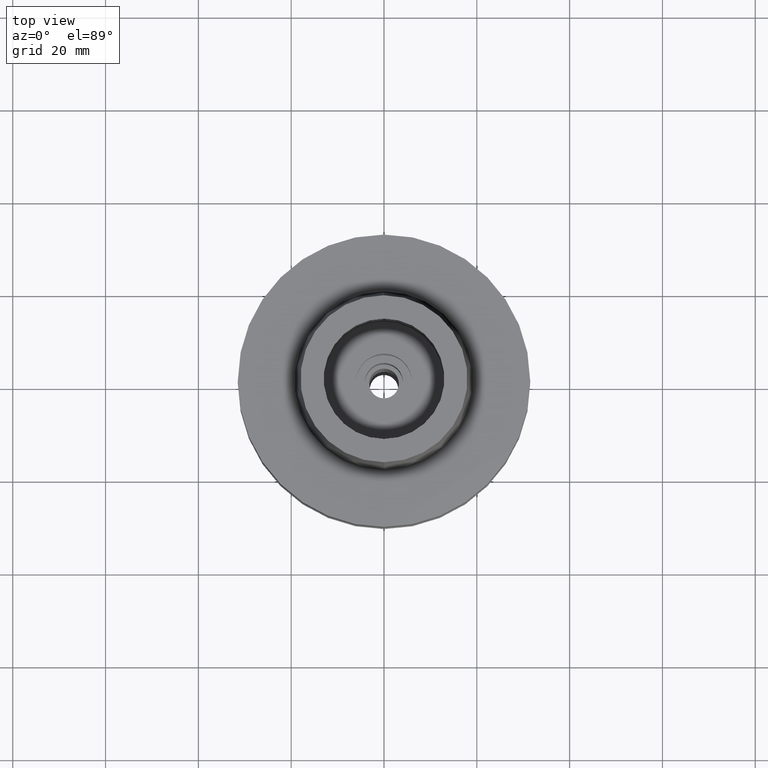
[diagram: clean part render]
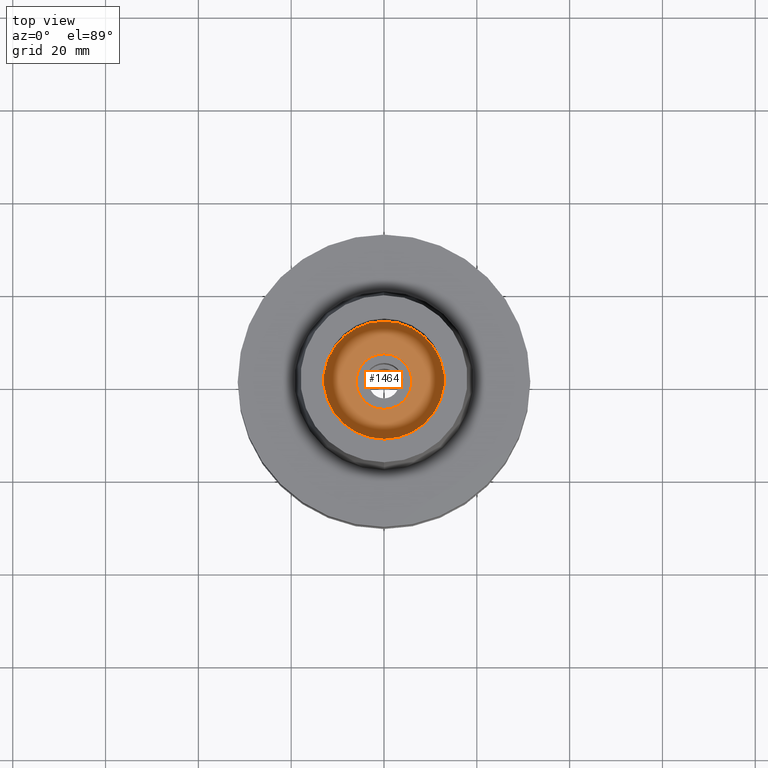
[diagram: same view with one face highlighted and labeled with its STEP entity id]
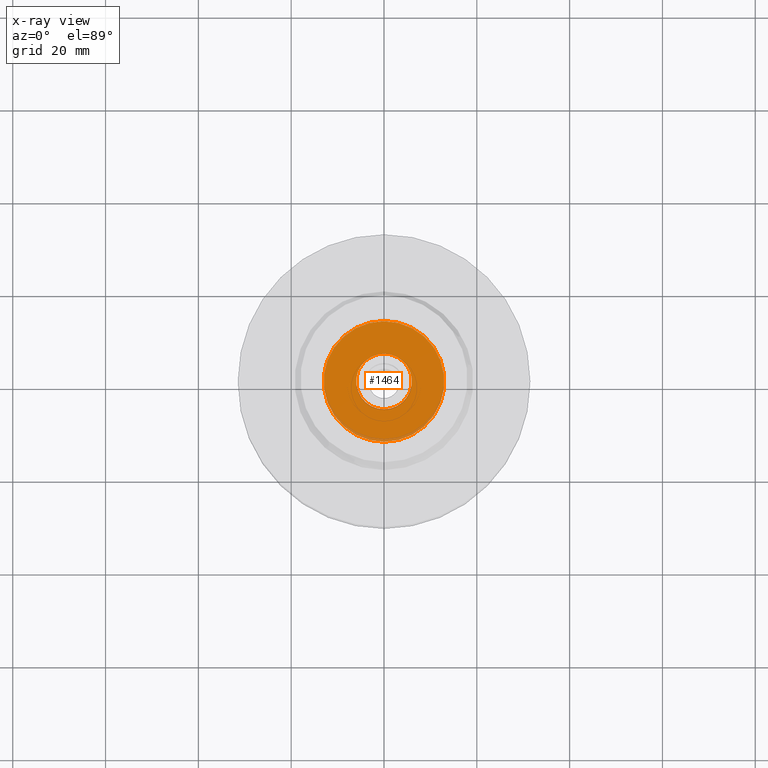
[diagram: x-ray of the same camera — body ghosted, the highlighted face saturated]
A machine part, top view. The second image highlights one B-rep face of the part: STEP entity #1464.
The next image is the same camera in x-ray: the body ghosted, the highlighted face saturated — about 4% of this face is hidden behind the body in this view.
In plain terms, the highlighted planar face has unit normal (0, 0, 1).
Its self-contained STEP definition (entity closure, byte-faithful):
#83 = VERTEX_POINT ( 'NONE', #275 ) ;
#211 = AXIS2_PLACEMENT_3D ( 'NONE', #1324, #2368, #226 ) ;
#220 = EDGE_CURVE ( 'NONE', #83, #1537, #1059, .T. ) ;
#226 = DIRECTION ( 'NONE',  ( 0.0000000000000000000, -1.000000000000000000, 0.0000000000000000000 ) ) ;
#275 = CARTESIAN_POINT ( 'NONE',  ( 0.0000000000000000000, 13.00000000000000000, -9.950000000000001066 ) ) ;
#298 = DIRECTION ( 'NONE',  ( 0.0000000000000000000, 0.0000000000000000000, -1.000000000000000000 ) ) ;
#419 = FACE_OUTER_BOUND ( 'NONE', #671, .T. ) ;
#450 = CARTESIAN_POINT ( 'NONE',  ( 0.0000000000000000000, -13.00000000000000000, -9.950000000000001066 ) ) ;
#580 = CARTESIAN_POINT ( 'NONE',  ( 0.0000000000000000000, -6.000000000000000000, -9.950000000000001066 ) ) ;
#586 = PLANE ( 'NONE',  #1655 ) ;
#608 = VERTEX_POINT ( 'NONE', #2474 ) ;
#671 = EDGE_LOOP ( 'NONE', ( #2159, #2787 ) ) ;
#744 = DIRECTION ( 'NONE',  ( 0.0000000000000000000, 0.0000000000000000000, 1.000000000000000000 ) ) ;
#821 = ORIENTED_EDGE ( 'NONE', *, *, #842, .F. ) ;
#842 = EDGE_CURVE ( 'NONE', #608, #2733, #2465, .T. ) ;
#851 = DIRECTION ( 'NONE',  ( 1.000000000000000000, 0.0000000000000000000, 0.0000000000000000000 ) ) ;
#1059 = CIRCLE ( 'NONE', #2653, 13.00000000000000000 ) ;
#1060 = EDGE_CURVE ( 'NONE', #2733, #608, #1251, .T. ) ;
#1164 = AXIS2_PLACEMENT_3D ( 'NONE', #2083, #2098, #1614 ) ;
#1249 = AXIS2_PLACEMENT_3D ( 'NONE', #1804, #744, #2265 ) ;
#1251 = CIRCLE ( 'NONE', #211, 6.000000000000000000 ) ;
#1324 = CARTESIAN_POINT ( 'NONE',  ( 0.0000000000000000000, 0.0000000000000000000, -9.950000000000001066 ) ) ;
#1464 = ADVANCED_FACE ( 'NONE', ( #419, #2361 ), #586, .T. ) ;
#1537 = VERTEX_POINT ( 'NONE', #450 ) ;
#1614 = DIRECTION ( 'NONE',  ( 0.0000000000000000000, -1.000000000000000000, 0.0000000000000000000 ) ) ;
#1655 = AXIS2_PLACEMENT_3D ( 'NONE', #1917, #2792, #851 ) ;
#1804 = CARTESIAN_POINT ( 'NONE',  ( 0.0000000000000000000, 0.0000000000000000000, -9.950000000000001066 ) ) ;
#1917 = CARTESIAN_POINT ( 'NONE',  ( 0.0000000000000000000, 0.0000000000000000000, -9.950000000000001066 ) ) ;
#2061 = DIRECTION ( 'NONE',  ( 0.0000000000000000000, 1.000000000000000000, 0.0000000000000000000 ) ) ;
#2083 = CARTESIAN_POINT ( 'NONE',  ( 0.0000000000000000000, 0.0000000000000000000, -9.950000000000001066 ) ) ;
#2098 = DIRECTION ( 'NONE',  ( 0.0000000000000000000, 0.0000000000000000000, -1.000000000000000000 ) ) ;
#2119 = CIRCLE ( 'NONE', #1164, 13.00000000000000000 ) ;
#2146 = ORIENTED_EDGE ( 'NONE', *, *, #1060, .F. ) ;
#2159 = ORIENTED_EDGE ( 'NONE', *, *, #220, .F. ) ;
#2265 = DIRECTION ( 'NONE',  ( 0.0000000000000000000, 1.000000000000000000, 0.0000000000000000000 ) ) ;
#2322 = EDGE_LOOP ( 'NONE', ( #821, #2146 ) ) ;
#2361 = FACE_BOUND ( 'NONE', #2322, .T. ) ;
#2368 = DIRECTION ( 'NONE',  ( 0.0000000000000000000, 0.0000000000000000000, 1.000000000000000000 ) ) ;
#2449 = EDGE_CURVE ( 'NONE', #1537, #83, #2119, .T. ) ;
#2465 = CIRCLE ( 'NONE', #1249, 6.000000000000000000 ) ;
#2474 = CARTESIAN_POINT ( 'NONE',  ( 0.0000000000000000000, 6.000000000000000000, -9.950000000000001066 ) ) ;
#2497 = CARTESIAN_POINT ( 'NONE',  ( 0.0000000000000000000, 0.0000000000000000000, -9.950000000000001066 ) ) ;
#2653 = AXIS2_PLACEMENT_3D ( 'NONE', #2497, #298, #2061 ) ;
#2733 = VERTEX_POINT ( 'NONE', #580 ) ;
#2787 = ORIENTED_EDGE ( 'NONE', *, *, #2449, .F. ) ;
#2792 = DIRECTION ( 'NONE',  ( 0.0000000000000000000, 0.0000000000000000000, 1.000000000000000000 ) ) ;